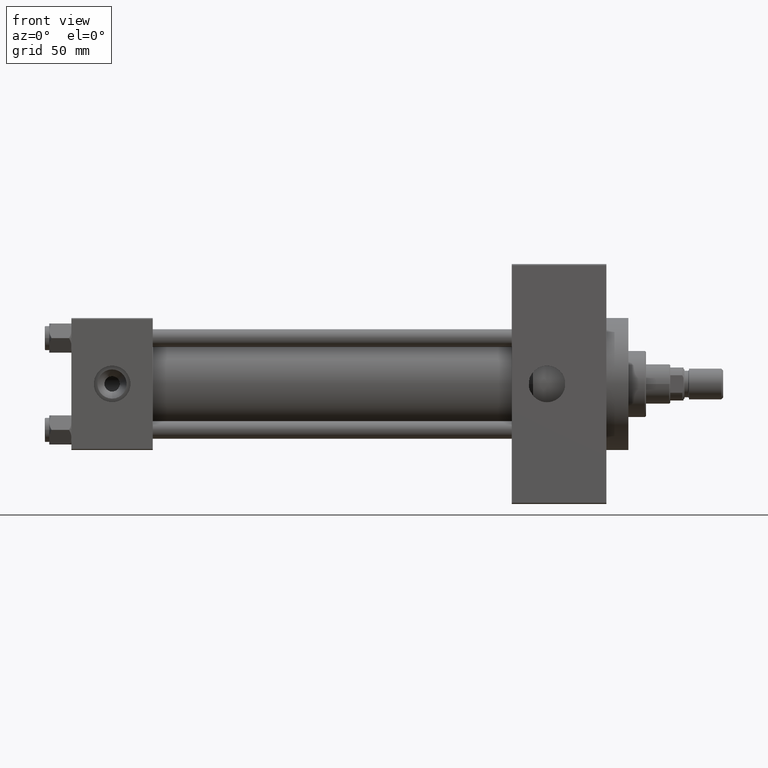
[diagram: clean part render]
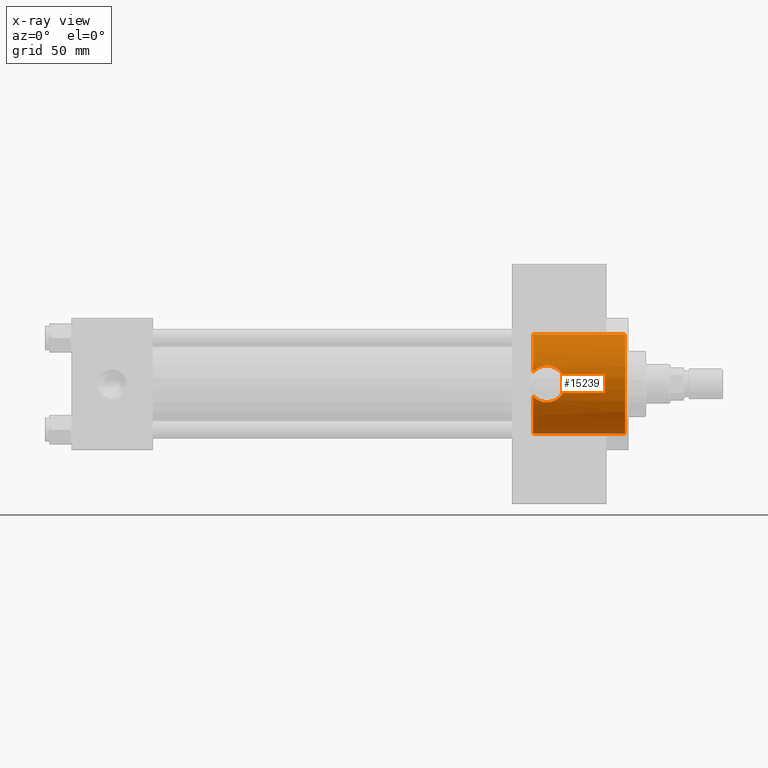
[diagram: x-ray — body ghosted, one internal face saturated and labeled with its STEP entity id]
A machine part, front view, then the same camera in x-ray: the body is ghosted and one INTERNAL B-rep face — a face not visible from any outside direction — is saturated and labeled: STEP entity #15239.
In plain terms, the highlighted cylindrical surface (partial cylindrical patch) has radius 22.5 mm, axis along (1, 0, 0).
Its self-contained STEP definition (entity closure, byte-faithful):
#20 = CARTESIAN_POINT ( 'NONE',  ( 216.2735061075312046, -20.90122245228732822, -8.330000000000000071 ) ) ;
#102 = ORIENTED_EDGE ( 'NONE', *, *, #3434, .F. ) ;
#545 = EDGE_CURVE ( 'NONE', #30486, #43381, #7293, .T. ) ;
#973 = CARTESIAN_POINT ( 'NONE',  ( 216.5543731579530515, -20.90679372045597262, 8.316058887085079121 ) ) ;
#1212 = CARTESIAN_POINT ( 'NONE',  ( 223.0675627765494369, -22.06333762759911465, 4.417272871008647961 ) ) ;
#1286 = DIRECTION ( 'NONE',  ( 1.000000000000000000, 0.000000000000000000, 0.000000000000000000 ) ) ;
#1428 = CARTESIAN_POINT ( 'NONE',  ( 215.4005171616786356, -20.90122245228734954, 8.329999999999998295 ) ) ;
#2713 = DIRECTION ( 'NONE',  ( 0.000000000000000000, 0.000000000000000000, -1.000000000000000000 ) ) ;
#2787 = ORIENTED_EDGE ( 'NONE', *, *, #4735, .F. ) ;
#3156 = CARTESIAN_POINT ( 'NONE',  ( 209.7400000000000091, 0.000000000000000000, -22.50000000000000355 ) ) ;
#3203 = CARTESIAN_POINT ( 'NONE',  ( 223.4672601230097655, -22.19473539390112293, 3.701775444982233765 ) ) ;
#3316 = VERTEX_POINT ( 'NONE', #6308 ) ;
#3434 = EDGE_CURVE ( 'NONE', #25277, #40217, #44327, .T. ) ;
#3445 = CARTESIAN_POINT ( 'NONE',  ( 221.5057538670177735, -21.61103907902401389, -6.274735597831404554 ) ) ;
#4134 = CARTESIAN_POINT ( 'NONE',  ( 222.2760300427460720, -21.81999627700183098, -5.504278278704842542 ) ) ;
#4604 = CARTESIAN_POINT ( 'NONE',  ( 218.6924408181926935, -21.07232387524590322, 7.887613602273567892 ) ) ;
#4735 = EDGE_CURVE ( 'NONE', #30933, #25277, #19238, .T. ) ;
#4865 = CARTESIAN_POINT ( 'NONE',  ( 209.7400000000000091, -21.81854028114622324, -5.495570943951117115 ) ) ;
#4877 = DIRECTION ( 'NONE',  ( 1.000000000000000000, 0.000000000000000000, 0.000000000000000000 ) ) ;
#5334 = CARTESIAN_POINT ( 'NONE',  ( 218.1693074062155802, -21.01188926694718262, 8.047222581461221935 ) ) ;
#5594 = CARTESIAN_POINT ( 'NONE',  ( 212.2800545255193754, -21.22802876403586225, -7.459060741738355205 ) ) ;
#6308 = CARTESIAN_POINT ( 'NONE',  ( 209.7400000000000091, -21.81854028114622324, 5.495570943951118892 ) ) ;
#6552 = DIRECTION ( 'NONE',  ( 1.000000000000000000, -0.000000000000000000, -0.000000000000000000 ) ) ;
#7293 = LINE ( 'NONE', #18232, #38562 ) ;
#7529 = EDGE_CURVE ( 'NONE', #30933, #16684, #9870, .T. ) ;
#7749 = CARTESIAN_POINT ( 'NONE',  ( 212.0214695962671669, -21.27506732941325396, 7.324357775039842977 ) ) ;
#8979 = CARTESIAN_POINT ( 'NONE',  ( 211.5072799748209320, -21.37716939153679974, -7.020813959009408300 ) ) ;
#9224 = CARTESIAN_POINT ( 'NONE',  ( 214.5159917530595521, -20.95182994654722819, -8.202162177390789566 ) ) ;
#9870 = B_SPLINE_CURVE_WITH_KNOTS ( 'NONE', 3,
 ( #4865, #38092, #42186, #38331, #8979, #27437, #5594, #31320, #30587, #9224, #45567, #27190, #12387, #16030 ),
 .UNSPECIFIED., .F., .F.,
 ( 4, 2, 2, 2, 2, 2, 4 ),
 ( 0.000000000000000000, 0.001781041944051180463, 0.002671562916076770586, 0.003562083888102360926, 0.005343125832153541171, 0.006233646804179091179, 0.007124167776204641186 ),
 .UNSPECIFIED. ) ;
#10493 = CARTESIAN_POINT ( 'NONE',  ( 224.1137670994563678, -22.42078891501157756, 1.905695455502132596 ) ) ;
#10956 = CARTESIAN_POINT ( 'NONE',  ( 217.3698902534410706, -20.94433763564107664, -8.221198477384685788 ) ) ;
#11189 = CARTESIAN_POINT ( 'NONE',  ( 220.4162946174782860, -21.36157403235598906, -7.068107254197744105 ) ) ;
#11304 = EDGE_CURVE ( 'NONE', #16684, #33354, #43156, .T. ) ;
#11406 = CARTESIAN_POINT ( 'NONE',  ( 224.3299185521605636, -22.49996984620014828, 0.5500617071476490150 ) ) ;
#11474 = AXIS2_PLACEMENT_3D ( 'NONE', #23606, #37889, #19949 ) ;
#11875 = CARTESIAN_POINT ( 'NONE',  ( 212.8158094925858279, -21.14073437645955522, 7.702989472338065191 ) ) ;
#11920 = CARTESIAN_POINT ( 'NONE',  ( 209.7400000000000091, 0.000000000000000000, 0.000000000000000000 ) ) ;
#12378 = CARTESIAN_POINT ( 'NONE',  ( 219.7100157079872531, -21.22206990084785616, 7.478228700289344388 ) ) ;
#12387 = CARTESIAN_POINT ( 'NONE',  ( 215.7033935767805701, -20.90122245228733178, -8.329999999999998295 ) ) ;
#13151 = DIRECTION ( 'NONE',  ( 1.000000000000000000, -0.000000000000000000, -0.000000000000000000 ) ) ;
#14141 = CARTESIAN_POINT ( 'NONE',  ( 219.7029940750482240, -21.22539488743753822, -7.466680409794069107 ) ) ;
#14613 = CARTESIAN_POINT ( 'NONE',  ( 224.2744378885958270, -22.47926508187072159, -1.105184406068013381 ) ) ;
#15072 = CARTESIAN_POINT ( 'NONE',  ( 220.1841016531934656, -21.31459428776615539, -7.208104800680172453 ) ) ;
#15239 = ADVANCED_FACE ( 'NONE', ( #28685 ), #42946, .F. ) ;
#15541 = CARTESIAN_POINT ( 'NONE',  ( 222.6131820133794577, -21.92059695852139711, 5.094123725193834495 ) ) ;
#15768 = CARTESIAN_POINT ( 'NONE',  ( 211.2697604933279081, -21.42856317882727524, 6.862982220796664201 ) ) ;
#15787 = CARTESIAN_POINT ( 'NONE',  ( 217.1003494092676078, -20.92838892255957006, 8.261561365096193654 ) ) ;
#16030 = CARTESIAN_POINT ( 'NONE',  ( 216.0000000000000284, -20.90122245228733178, -8.329999999999998295 ) ) ;
#16247 = CARTESIAN_POINT ( 'NONE',  ( 213.6551550182248320, -21.03047559937813560, 7.998696374284281596 ) ) ;
#16493 = AXIS2_PLACEMENT_3D ( 'NONE', #46092, #13151, #2713 ) ;
#16684 = VERTEX_POINT ( 'NONE', #40303 ) ;
#17568 = ORIENTED_EDGE ( 'NONE', *, *, #7529, .T. ) ;
#17618 = CARTESIAN_POINT ( 'NONE',  ( 209.7400000000000091, -21.81854028114622324, -5.495570943951117115 ) ) ;
#18232 = CARTESIAN_POINT ( 'NONE',  ( 209.7400000000000091, 2.755455298081545172E-15, 22.50000000000000355 ) ) ;
#18251 = CARTESIAN_POINT ( 'NONE',  ( 223.0690759461941468, -22.06383064093187585, -4.414719317479089966 ) ) ;
#18473 = CARTESIAN_POINT ( 'NONE',  ( 222.6186959168767601, -21.92229428948382974, -5.086500752054618602 ) ) ;
#18550 = CIRCLE ( 'NONE', #47152, 22.50000000000000355 ) ;
#18576 = CARTESIAN_POINT ( 'NONE',  ( 209.7400000000000091, 0.000000000000000000, -22.50000000000000355 ) ) ;
#18938 = CARTESIAN_POINT ( 'NONE',  ( 218.7005757782755779, -21.06910324548280400, -7.898897868879303452 ) ) ;
#19238 = CIRCLE ( 'NONE', #11474, 22.50000000000000355 ) ;
#19643 = CARTESIAN_POINT ( 'NONE',  ( 214.8116114218196344, -20.92703331906126962, 8.266041580867380389 ) ) ;
#19703 = CARTESIAN_POINT ( 'NONE',  ( 251.5000000000000000, 2.755455298081545172E-15, 22.50000000000000355 ) ) ;
#19949 = DIRECTION ( 'NONE',  ( 0.000000000000000000, 0.000000000000000000, -1.000000000000000000 ) ) ;
#21161 = CARTESIAN_POINT ( 'NONE',  ( 216.0000000000000284, -20.90122245228733533, 8.329999999999998295 ) ) ;
#21652 = CARTESIAN_POINT ( 'NONE',  ( 224.0457606325067843, -22.39619972498788414, 2.174768506008417646 ) ) ;
#22479 = EDGE_CURVE ( 'NONE', #33354, #3316, #30359, .T. ) ;
#22537 = ORIENTED_EDGE ( 'NONE', *, *, #28931, .F. ) ;
#23012 = CARTESIAN_POINT ( 'NONE',  ( 251.5000000000000000, 0.000000000000000000, -22.50000000000000355 ) ) ;
#23555 = CARTESIAN_POINT ( 'NONE',  ( 222.2706970584281976, -21.81851527395823709, 5.509885407731396789 ) ) ;
#23606 = CARTESIAN_POINT ( 'NONE',  ( 209.7400000000000091, 0.000000000000000000, 0.000000000000000000 ) ) ;
#24078 = ORIENTED_EDGE ( 'NONE', *, *, #28676, .T. ) ;
#25277 = VERTEX_POINT ( 'NONE', #18576 ) ;
#25296 = CARTESIAN_POINT ( 'NONE',  ( 223.8855645018619214, -22.33915006169611317, 2.698472660097858355 ) ) ;
#26192 = CARTESIAN_POINT ( 'NONE',  ( 212.2813383015108286, -21.22781254901980574, 7.459669642192411132 ) ) ;
#26215 = CARTESIAN_POINT ( 'NONE',  ( 223.2086838033527840, -22.10908057845583130, -4.183043294148132141 ) ) ;
#26935 = CARTESIAN_POINT ( 'NONE',  ( 221.5068656785022654, -21.61137517055395918, 6.273349121788490024 ) ) ;
#27190 = CARTESIAN_POINT ( 'NONE',  ( 215.4069016165258290, -20.90753896790107547, -8.314203881045530764 ) ) ;
#27437 = CARTESIAN_POINT ( 'NONE',  ( 212.0164830714162747, -21.27597812299412894, -7.321745335051902615 ) ) ;
#27848 = CIRCLE ( 'NONE', #29407, 22.50000000000000355 ) ;
#28676 = EDGE_CURVE ( 'NONE', #43381, #40217, #27848, .T. ) ;
#28685 = FACE_OUTER_BOUND ( 'NONE', #39507, .T. ) ;
#28931 = EDGE_CURVE ( 'NONE', #30486, #3316, #18550, .T. ) ;
#28943 = CARTESIAN_POINT ( 'NONE',  ( 224.0590295962803680, -22.40087039118136047, -2.177107464027087325 ) ) ;
#29401 = CARTESIAN_POINT ( 'NONE',  ( 216.5471095774289267, -20.90659301079499954, -8.316562903860804212 ) ) ;
#29407 = AXIS2_PLACEMENT_3D ( 'NONE', #34521, #1286, #45638 ) ;
#29638 = CARTESIAN_POINT ( 'NONE',  ( 217.0945140872408103, -20.92807357394550394, -8.262359610693522427 ) ) ;
#29861 = CARTESIAN_POINT ( 'NONE',  ( 221.0889559316785267, -21.50736897996591424, -6.616873940636491369 ) ) ;
#30332 = CARTESIAN_POINT ( 'NONE',  ( 220.1856674176400190, -21.31171765456206657, 7.222201961450707586 ) ) ;
#30359 = B_SPLINE_CURVE_WITH_KNOTS ( 'NONE', 3,
 ( #34185, #1428, #19643, #41916, #16247, #34424, #11875, #26192, #7749, #37812, #15768, #30560, #45294, #30794 ),
 .UNSPECIFIED., .F., .F.,
 ( 4, 2, 2, 2, 2, 2, 4 ),
 ( 0.03340145977438373909, 0.03517803722730265120, 0.03606632595376206563, 0.03695461468022148005, 0.03784290340668090141, 0.03873119213314031584, 0.04050776958605908223 ),
 .UNSPECIFIED. ) ;
#30486 = VERTEX_POINT ( 'NONE', #38291 ) ;
#30560 = CARTESIAN_POINT ( 'NONE',  ( 210.5602391363179038, -21.59259860989615021, 6.336013317517857679 ) ) ;
#30587 = CARTESIAN_POINT ( 'NONE',  ( 213.6423281438610218, -21.02576769369943932, -8.011595525461764566 ) ) ;
#30794 = CARTESIAN_POINT ( 'NONE',  ( 209.7400000000000091, -21.81854028114622324, 5.495570943951118892 ) ) ;
#30815 = CARTESIAN_POINT ( 'NONE',  ( 217.6405020106405175, -20.96042450051701778, 8.180473043859899818 ) ) ;
#30933 = VERTEX_POINT ( 'NONE', #17618 ) ;
#31062 = CARTESIAN_POINT ( 'NONE',  ( 216.2770915216183596, -20.90122245228732822, 8.330000000000001847 ) ) ;
#31320 = CARTESIAN_POINT ( 'NONE',  ( 213.0838949812959982, -21.09704273054903467, -7.825085139990034300 ) ) ;
#33037 = CARTESIAN_POINT ( 'NONE',  ( 223.4663613352663845, -22.19443338850292946, -3.703568790865940041 ) ) ;
#33266 = CARTESIAN_POINT ( 'NONE',  ( 223.5849097978501447, -22.23470781577740141, -3.454383896492962958 ) ) ;
#33354 = VERTEX_POINT ( 'NONE', #21161 ) ;
#33458 = ORIENTED_EDGE ( 'NONE', *, *, #22479, .T. ) ;
#33523 = ORIENTED_EDGE ( 'NONE', *, *, #11304, .T. ) ;
#33726 = CARTESIAN_POINT ( 'NONE',  ( 219.4549169580586181, -21.18338444856564351, -7.584632363023120938 ) ) ;
#34185 = CARTESIAN_POINT ( 'NONE',  ( 216.0000000000000284, -20.90122245228733533, 8.329999999999998295 ) ) ;
#34424 = CARTESIAN_POINT ( 'NONE',  ( 213.0904099977523742, -21.10090803564297701, 7.811000428585645139 ) ) ;
#34463 = DIRECTION ( 'NONE',  ( 0.000000000000000000, 0.000000000000000000, -1.000000000000000000 ) ) ;
#34521 = CARTESIAN_POINT ( 'NONE',  ( 251.5000000000000000, 0.000000000000000000, 0.000000000000000000 ) ) ;
#36438 = CARTESIAN_POINT ( 'NONE',  ( 223.5839448562604161, -22.23438073986798358, 3.456375289581933075 ) ) ;
#36675 = CARTESIAN_POINT ( 'NONE',  ( 216.0000000000000284, -20.90122245228733178, -8.329999999999998295 ) ) ;
#37812 = CARTESIAN_POINT ( 'NONE',  ( 211.5161894936350677, -21.37532087138411896, 7.026404794290226796 ) ) ;
#37889 = DIRECTION ( 'NONE',  ( 1.000000000000000000, 0.000000000000000000, 0.000000000000000000 ) ) ;
#38092 = CARTESIAN_POINT ( 'NONE',  ( 210.1302032349920523, -21.70658630899342967, -5.940051103694794499 ) ) ;
#38291 = CARTESIAN_POINT ( 'NONE',  ( 209.7400000000000091, 2.755455298081545172E-15, 22.50000000000000355 ) ) ;
#38324 = CARTESIAN_POINT ( 'NONE',  ( 218.9526680260204046, -21.10727557153275669, 7.793937181550306903 ) ) ;
#38331 = CARTESIAN_POINT ( 'NONE',  ( 211.2630478035204078, -21.43006822195328809, -6.858243691352253535 ) ) ;
#38562 = VECTOR ( 'NONE', #43885, 1000.000000000000000 ) ;
#39507 = EDGE_LOOP ( 'NONE', ( #22537, #45293, #24078, #102, #2787, #17568, #33523, #33458 ) ) ;
#40053 = CARTESIAN_POINT ( 'NONE',  ( 223.7930968072331552, -22.30658703498862039, 2.954723655153348894 ) ) ;
#40217 = VERTEX_POINT ( 'NONE', #23012 ) ;
#40303 = CARTESIAN_POINT ( 'NONE',  ( 216.0000000000000284, -20.90122245228733178, -8.329999999999998295 ) ) ;
#40977 = CARTESIAN_POINT ( 'NONE',  ( 224.2761281519646275, -22.47988508193238388, 1.094792065016546578 ) ) ;
#41690 = CARTESIAN_POINT ( 'NONE',  ( 223.2094365790031532, -22.10932566242728825, 4.181762714824278859 ) ) ;
#41916 = CARTESIAN_POINT ( 'NONE',  ( 213.9433953409140088, -21.00018004101065472, 8.077560274214619085 ) ) ;
#42179 = CARTESIAN_POINT ( 'NONE',  ( 216.0000000000000284, -20.90122245228733533, 8.329999999999998295 ) ) ;
#42186 = CARTESIAN_POINT ( 'NONE',  ( 210.5599114470476252, -21.59276950757633173, -6.335268510715383883 ) ) ;
#42412 = VECTOR ( 'NONE', #6552, 1000.000000000000000 ) ;
#42946 = CYLINDRICAL_SURFACE ( 'NONE', #16493, 22.50000000000000355 ) ;
#43156 = B_SPLINE_CURVE_WITH_KNOTS ( 'NONE', 3,
 ( #36675, #20, #29401, #29638, #10956, #44378, #18938, #33726, #14141, #15072, #11189, #29861, #3445, #4134, #18473, #18251, #26215, #33037, #33266, #47768, #28943, #14613, #44139, #11406, #40977, #10493, #21652, #25296, #40053, #36438, #3203, #41690, #1212, #15541, #23555, #26935, #45074, #30332, #12378, #38324, #4604, #5334, #30815, #15787, #973, #31062, #42179 ),
 .UNSPECIFIED., .F., .F.,
 ( 4, 2, 2, 2, 2, 2, 2, 2, 2, 2, 2, 2, 2, 2, 2, 2, 2, 2, 2, 2, 2, 1, 2, 4 ),
 ( 0.007124167776204641186, 0.007945333151147721679, 0.008766498526090802171, 0.01040882927597696489, 0.01122999465092004712, 0.01205116002586312934, 0.01369349077574929033, 0.01533582152563545131, 0.01615698690057853354, 0.01697815227552161577, 0.01862048302540780798, 0.02026281377529400018, 0.02190514452518019586, 0.02272630990012330238, 0.02354747527506640542, 0.02436864065000950846, 0.02518980602495261845, 0.02683213677483887311, 0.02847446752472512776, 0.03011679827461138242, 0.03093796364955446465, 0.03175912902449756076, 0.03258029439944064298, 0.03340145977438373909 ),
 .UNSPECIFIED. ) ;
#43381 = VERTEX_POINT ( 'NONE', #19703 ) ;
#43885 = DIRECTION ( 'NONE',  ( 1.000000000000000000, -0.000000000000000000, -0.000000000000000000 ) ) ;
#44139 = CARTESIAN_POINT ( 'NONE',  ( 224.3300812647950409, -22.50003008603270871, -0.5475920828583183964 ) ) ;
#44327 = LINE ( 'NONE', #3156, #42412 ) ;
#44378 = CARTESIAN_POINT ( 'NONE',  ( 218.1797018052745614, -21.00767761359999497, -8.058598816431000955 ) ) ;
#45074 = CARTESIAN_POINT ( 'NONE',  ( 221.0823739737877531, -21.50581369923292741, 6.621894569807063924 ) ) ;
#45293 = ORIENTED_EDGE ( 'NONE', *, *, #545, .T. ) ;
#45294 = CARTESIAN_POINT ( 'NONE',  ( 210.1294213925112899, -21.70681062894639979, 5.939160507616684015 ) ) ;
#45567 = CARTESIAN_POINT ( 'NONE',  ( 214.8141494303989418, -20.93274137745091679, -8.250546060391942049 ) ) ;
#45638 = DIRECTION ( 'NONE',  ( 0.000000000000000000, 0.000000000000000000, -1.000000000000000000 ) ) ;
#46092 = CARTESIAN_POINT ( 'NONE',  ( 209.7400000000000091, 0.000000000000000000, 0.000000000000000000 ) ) ;
#47152 = AXIS2_PLACEMENT_3D ( 'NONE', #11920, #4877, #34463 ) ;
#47768 = CARTESIAN_POINT ( 'NONE',  ( 223.9001442294269566, -22.34355564568058128, -2.697317211183192232 ) ) ;